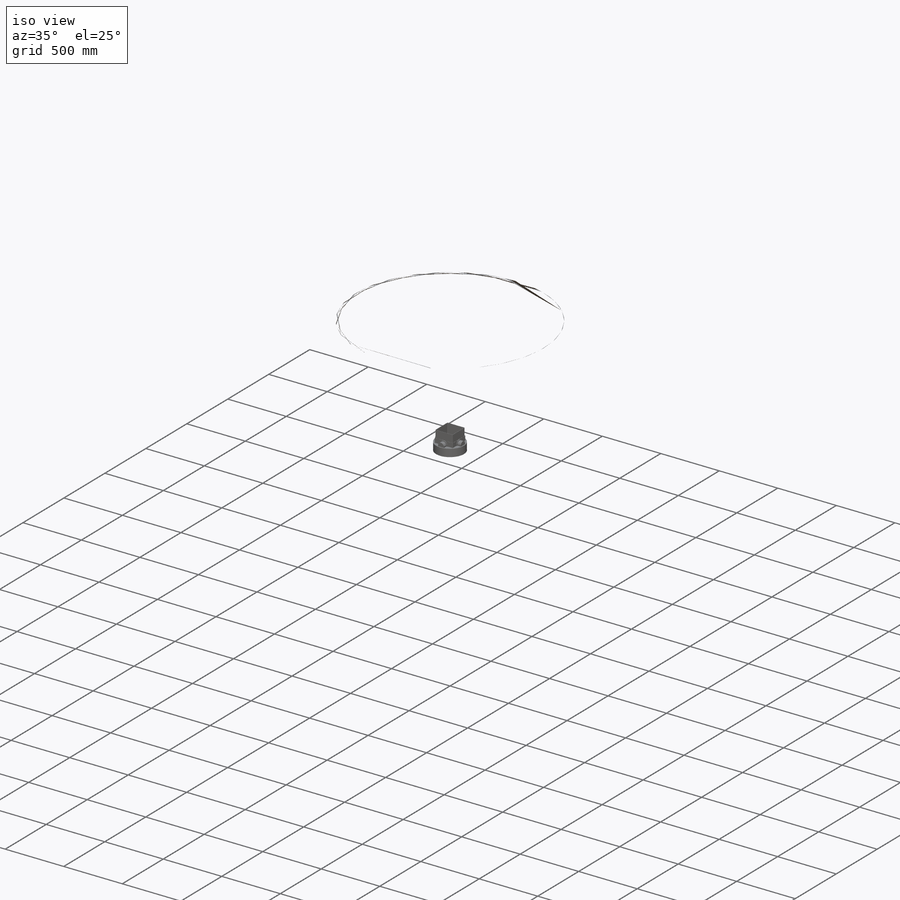
[diagram: iso view]
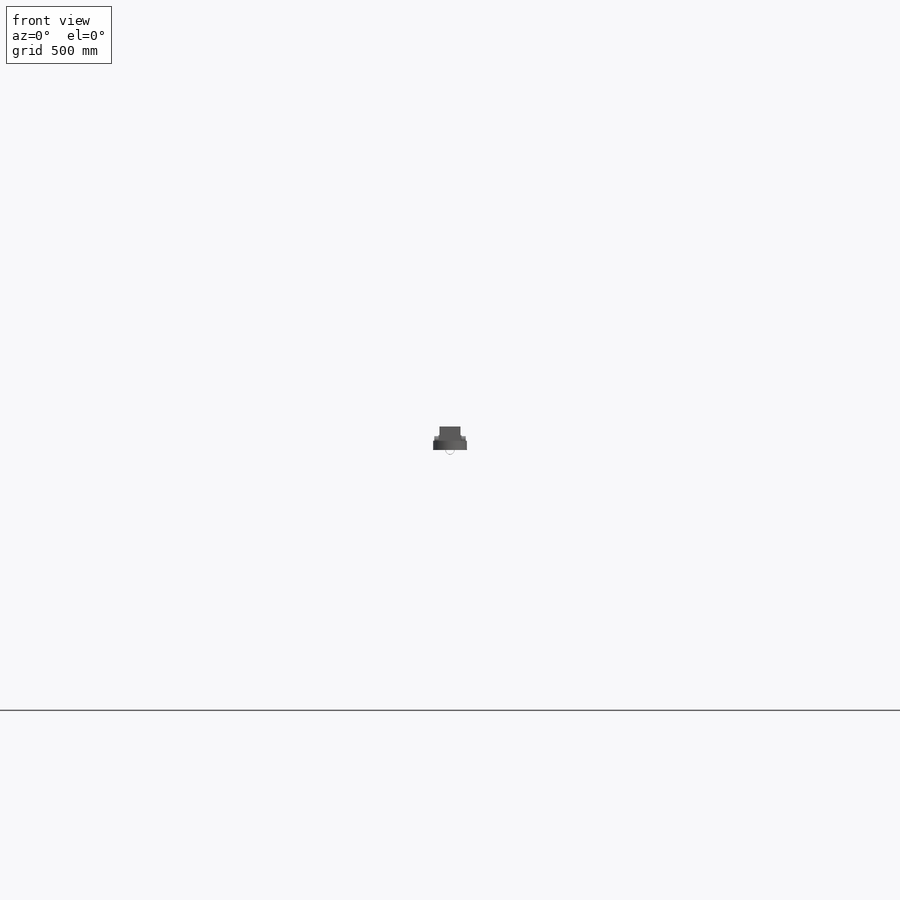
[diagram: front view]
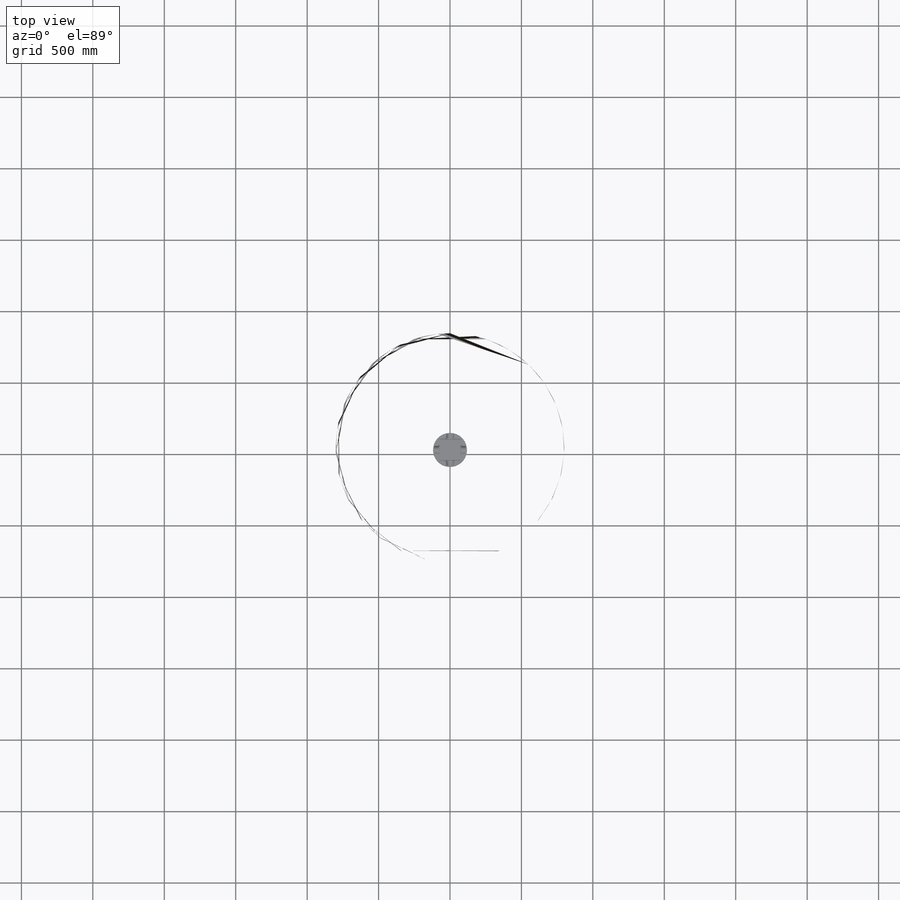
[diagram: top view]
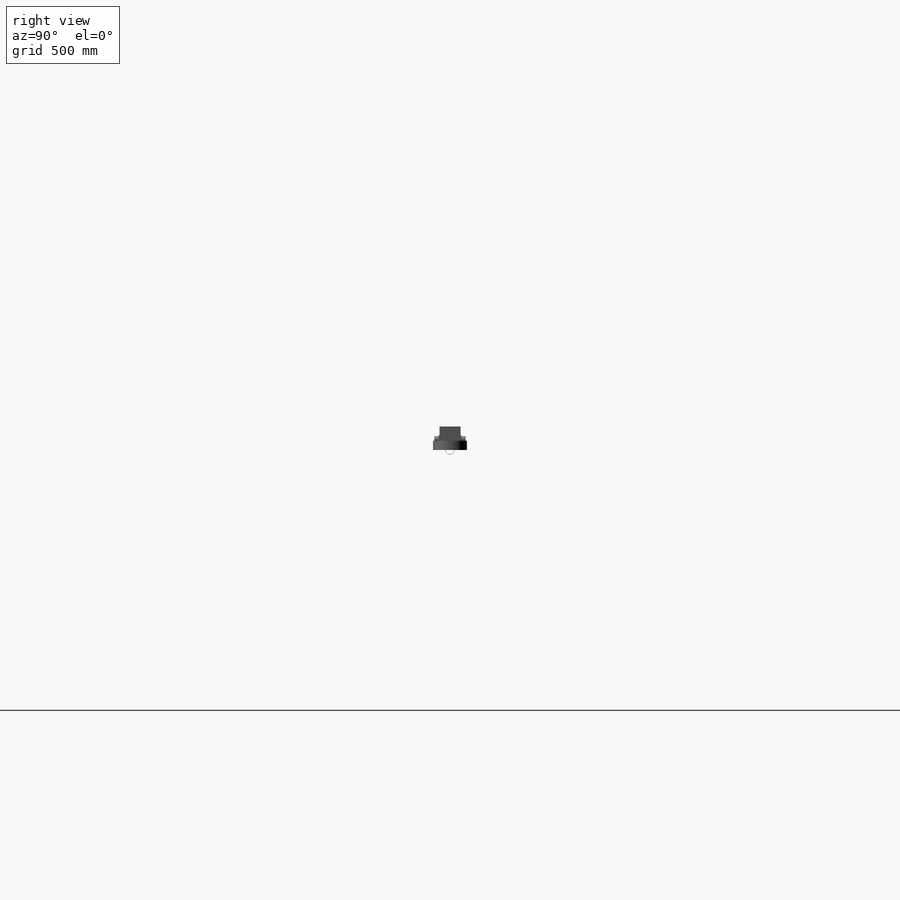
[diagram: right view]
SOLIDWORKS PART (.sldprt)
format: sldprt  version: not decoded by parser v0  size: 1,203,200 bytes
history: native  units: mm
features: material x33, extrude x28, cut_extrude x2, plane x1, sketch x1, revolve x1, chamfer x1 (+24 scaffold rows collapsed; 3 parser-record rows omitted)
feature tree (94):
  scaffold x24  (default folders/planes/origin — collapsed)
  material  "Материал <не указан>"
  material  "Эскиз2"
  material  "Эскиз гайки"
  material  "Эскиз джем2"
  material  "Эскиз столбики1"
  material  "Эскиз кольцо1"
  material  "Эскиз столбики2"
  material  "Эскиз кольцо2"
  material  "Эскиз столбики3"
  material  "Эскиз джем1"
  material  "Эскиз столбики4"
  material  "Эски R1"
  material  "Эскиз для плоскости R2"
  material  "Эскиз R2"
  material  "Эскиз R3"
  material  "Эскиз R4"
  material  "Эскиз изолятор"
  material  "Эскиз ФЭУ"
  material  "Эскиз отв1"
  material  "Эскиз отв2"
  material  "Эскиз шайба1"
  material  "Эскиз шайба2"
  material  "Эскиз шайба3"
  material  "Эскиз шайба4"
  material  "Эскиз ФЭУ_1_1"
  material  "Эскиз ФЭУ_1_2"
  material  "Эскиз ФЭУ_1_3"
  material  "Эскиз ФЭУ_1_4"
  material  "Эскиз-ФЭУ_2_1"
  material  "Эскиз-ФЭУ_2_2"
  material  "Эскиз-ФЭУ_2_3"
  material  "Эскиз-ФЭУ_2_4"
  material  "Эскиз Аргон"
  plane  "Спереди"
  sketch  "Эскиз1"  dims[D1=119.0mm D2=5.0mm D3=12.0mm D4=10.0mm D5=16.0mm D6=3.03mm D7=110.0mm D8=2.0mm]
  revolve  "основание"  Angle=360deg
  parser-record x3  (decoder bookkeeping rows leaked as tree rows — omitted from the tree; the rows remain in map.json)
  extrude  "гайки"  Depth=2mm
  extrude  "джем2"  Depth=0.5mm
  extrude  "столбики1"  Depth=15.5mm
  extrude  "кольцо1"  Depth=0.5mm
  extrude  "столбики2"  Depth=15.5mm
  extrude  "кольцо2"  Depth=0.5mm
  extrude  "столбики3"  Depth=15.5mm
  extrude  "джем1"  Depth=0.5mm
  extrude  "столбики4"  Depth=15.5mm
  extrude  "R1"  Depth=7mm
  extrude  "R2"  Depth=7mm
  extrude  "R3"  Depth=7mm
  extrude  "R4"  Depth=7mm
  extrude  "изолятор"  Depth=150mm
  extrude  "каркас ФЭУ"  Depth=63mm
  cut_extrude  "Вырез-1"  [1 undecoded]
  cut_extrude  "Вырез-2"  [1 undecoded]
  extrude  "шайба1"  Depth=2.48mm
  extrude  "шайба2"  Depth=2.48mm
  extrude  "шайба3"  Depth=2.48mm
  extrude  "шайба4"  Depth=2.48mm
  chamfer  "Фаска для шайб"  Distance=1mm Angle=60deg
  extrude  "Бобышка-ФЭУ_1_1"  Depth=4mm
  extrude  "Бобышка-ФЭУ_1_2"  Depth=4mm
  extrude  "Бобышка-ФЭУ_1_3"  Depth=4mm
  extrude  "Бобышка-ФЭУ_1_4"  Depth=4mm
  extrude  "Бобышка-ФЭУ_2_1"  Depth=29mm
  extrude  "Бобышка-ФЭУ_2_2"  Depth=29mm
  extrude  "Бобышка-ФЭУ_2_3"  Depth=29mm
  extrude  "Бобышка-ФЭУ_2_4"  Depth=29mm
  extrude  "Жидкий Аргон"  Depth=60mm
decode coverage: 31 of 33 modeling features carry decoded parameters
note: 2 parameter values undecoded
note: suppression state not decoded; provenance and decode notes live in map.json
